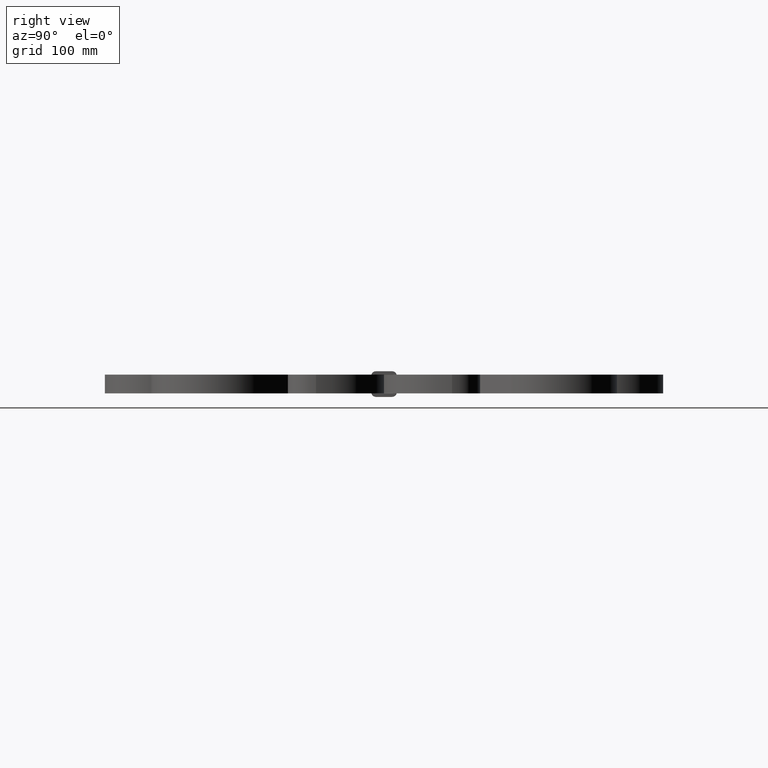
[diagram: clean part render]
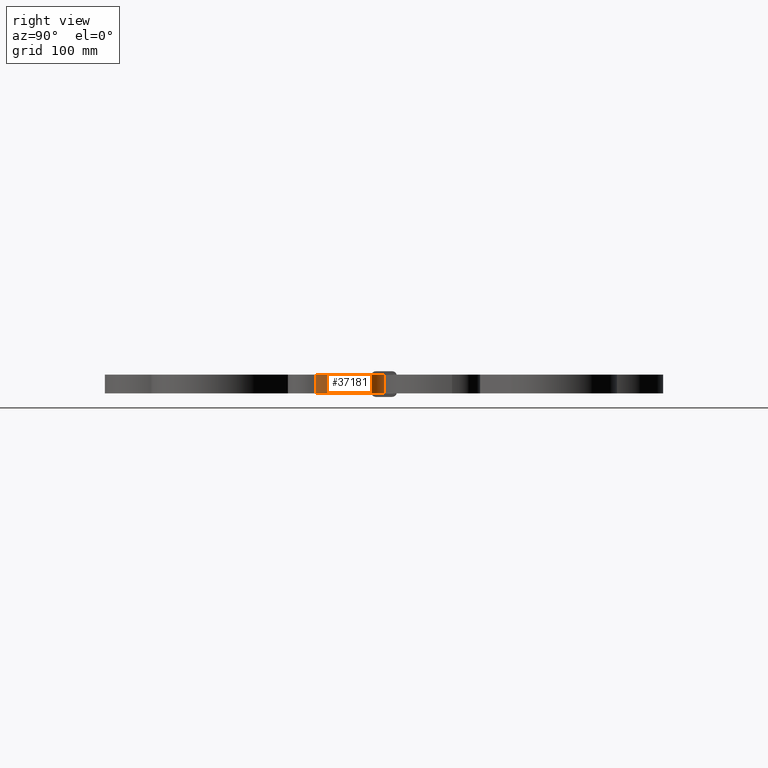
[diagram: same view with one face highlighted and labeled with its STEP entity id]
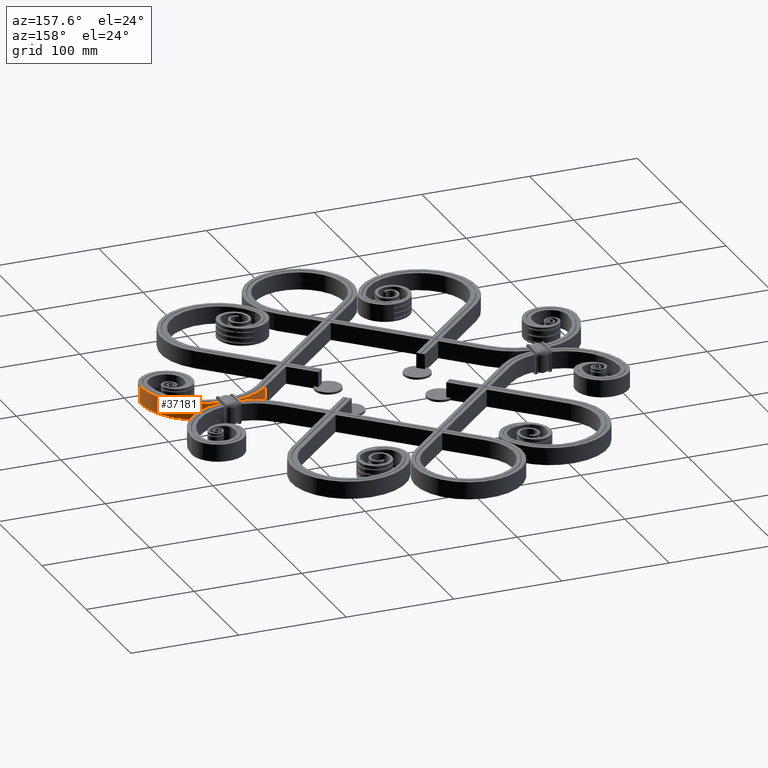
[diagram: same view with one face highlighted and labeled with its STEP entity id]
A machine part, right view. The second image highlights one B-rep face of the part: STEP entity #37181.
A second angle (auxiliary view) of the same face is appended — the face is thin or edge-on in the first view.
In plain terms, the highlighted cylindrical surface (partial cylindrical patch) has radius 58.3363 mm, axis along (0, 0, -1).
Its self-contained STEP definition (entity closure, byte-faithful):
#778 = DIRECTION ( 'NONE',  ( -4.757855935405398686E-16, -1.000000000000000000, 5.055221931368236227E-16 ) ) ;
#1561 = FACE_OUTER_BOUND ( 'NONE', #25409, .T. ) ;
#1835 = CARTESIAN_POINT ( 'NONE',  ( 102.9136905521103103, -17.08630944789002370, 8.000000000000000000 ) ) ;
#2673 = EDGE_CURVE ( 'NONE', #48851, #27803, #57656, .T. ) ;
#3061 = CARTESIAN_POINT ( 'NONE',  ( 144.1636905521100687, -58.33630944788991712, -8.000000000000000000 ) ) ;
#3103 = EDGE_CURVE ( 'NONE', #20527, #10687, #22519, .T. ) ;
#3242 = DIRECTION ( 'NONE',  ( -1.272096164169248062E-31, -4.956352788505173129E-16, -1.000000000000000000 ) ) ;
#3523 = DIRECTION ( 'NONE',  ( -1.000000000000000000, 2.378927967702698850E-16, 0.000000000000000000 ) ) ;
#3731 = AXIS2_PLACEMENT_3D ( 'NONE', #44856, #3242, #27024 ) ;
#3752 = ORIENTED_EDGE ( 'NONE', *, *, #9852, .T. ) ;
#4520 = ORIENTED_EDGE ( 'NONE', *, *, #3103, .F. ) ;
#5585 = DIRECTION ( 'NONE',  ( 3.814872741636481759E-30, -9.791242045329086144E-46, -1.000000000000000000 ) ) ;
#5991 = ORIENTED_EDGE ( 'NONE', *, *, #54733, .F. ) ;
#6671 = CIRCLE ( 'NONE', #47168, 58.33630944788995265 ) ;
#6854 = VERTEX_POINT ( 'NONE', #46424 ) ;
#8261 = AXIS2_PLACEMENT_3D ( 'NONE', #30892, #40107, #21248 ) ;
#8642 = ORIENTED_EDGE ( 'NONE', *, *, #46129, .F. ) ;
#9520 = EDGE_CURVE ( 'NONE', #18751, #46641, #53702, .T. ) ;
#9852 = EDGE_CURVE ( 'NONE', #6854, #35816, #44411, .T. ) ;
#10687 = VERTEX_POINT ( 'NONE', #22502 ) ;
#12250 = DIRECTION ( 'NONE',  ( -1.000000000000000000, 2.378927967702698850E-16, 0.000000000000000000 ) ) ;
#13015 = CIRCLE ( 'NONE', #48517, 58.33630944788993133 ) ;
#13120 = CARTESIAN_POINT ( 'NONE',  ( 151.4099999999999966, -0.4518037543505312725, -8.000000000000000000 ) ) ;
#13217 = CIRCLE ( 'NONE', #8261, 58.33630944788993844 ) ;
#16032 = AXIS2_PLACEMENT_3D ( 'NONE', #3061, #21452, #12250 ) ;
#17785 = CARTESIAN_POINT ( 'NONE',  ( 144.1636905521100687, -58.33630944788991712, 8.000000000000000000 ) ) ;
#18751 = VERTEX_POINT ( 'NONE', #33766 ) ;
#18949 = CARTESIAN_POINT ( 'NONE',  ( 144.1636905521100687, -58.33630944788991712, 8.000000000000028422 ) ) ;
#19025 = AXIS2_PLACEMENT_3D ( 'NONE', #35549, #44367, #3523 ) ;
#19775 = CARTESIAN_POINT ( 'NONE',  ( 144.1636905521100687, -58.33630944788991712, -8.000000000000003553 ) ) ;
#20527 = VERTEX_POINT ( 'NONE', #35962 ) ;
#21248 = DIRECTION ( 'NONE',  ( -1.000000000000000000, 2.378927967702698850E-16, 0.000000000000000000 ) ) ;
#21452 = DIRECTION ( 'NONE',  ( 0.000000000000000000, -0.000000000000000000, 1.000000000000000000 ) ) ;
#22131 = CARTESIAN_POINT ( 'NONE',  ( 202.4999999999999716, -58.33630944788968264, 8.000000000000000000 ) ) ;
#22392 = EDGE_CURVE ( 'NONE', #20527, #6854, #13015, .T. ) ;
#22502 = CARTESIAN_POINT ( 'NONE',  ( 102.9136905521103103, -17.08630944789002370, 8.000000000000000000 ) ) ;
#22519 = CIRCLE ( 'NONE', #49575, 58.33630944788993844 ) ;
#23367 = CIRCLE ( 'NONE', #48595, 58.33630944788995265 ) ;
#23594 = DIRECTION ( 'NONE',  ( 1.000000000000000000, -2.378927967702698357E-16, 0.000000000000000000 ) ) ;
#23964 = DIRECTION ( 'NONE',  ( -1.272096164169248062E-31, -4.956352788505173129E-16, -1.000000000000000000 ) ) ;
#25409 = EDGE_LOOP ( 'NONE', ( #39380, #53318, #5991, #47240, #41666, #38556, #4520, #39556, #3752, #8642 ) ) ;
#25608 = LINE ( 'NONE', #1835, #59250 ) ;
#25688 = CARTESIAN_POINT ( 'NONE',  ( 144.1636905521100687, -58.33630944788991712, -8.000000000000003553 ) ) ;
#27024 = DIRECTION ( 'NONE',  ( -4.757855935405398686E-16, -1.000000000000000000, 5.055221931368236227E-16 ) ) ;
#27281 = DIRECTION ( 'NONE',  ( 1.000000000000000000, -2.378927967702698357E-16, 0.000000000000000000 ) ) ;
#27803 = VERTEX_POINT ( 'NONE', #50667 ) ;
#28599 = EDGE_CURVE ( 'NONE', #10687, #46641, #25608, .T. ) ;
#28759 = CARTESIAN_POINT ( 'NONE',  ( 202.4999999999999716, -58.33630944788968264, 8.000000000000000000 ) ) ;
#29201 = VERTEX_POINT ( 'NONE', #47955 ) ;
#30332 = CARTESIAN_POINT ( 'NONE',  ( 144.1636905521100687, -58.33630944788991712, 8.000000000000000000 ) ) ;
#30337 = DIRECTION ( 'NONE',  ( 3.814872741636481759E-30, -9.791242045329086144E-46, -1.000000000000000000 ) ) ;
#30892 = CARTESIAN_POINT ( 'NONE',  ( 144.1636905521100687, -58.33630944788991712, 8.000000000000000000 ) ) ;
#31974 = AXIS2_PLACEMENT_3D ( 'NONE', #30332, #54696, #27281 ) ;
#33698 = DIRECTION ( 'NONE',  ( 0.000000000000000000, 0.000000000000000000, -1.000000000000000000 ) ) ;
#33766 = CARTESIAN_POINT ( 'NONE',  ( 136.9099999999999682, -0.4527282406580905860, -8.000000000000000000 ) ) ;
#34689 = VERTEX_POINT ( 'NONE', #13120 ) ;
#35549 = CARTESIAN_POINT ( 'NONE',  ( 144.1636905521100687, -58.33630944788991712, -8.000000000000000000 ) ) ;
#35816 = VERTEX_POINT ( 'NONE', #42559 ) ;
#35962 = CARTESIAN_POINT ( 'NONE',  ( 136.9099999999999682, -0.4527282406580905860, 7.999999999999998224 ) ) ;
#37181 = ADVANCED_FACE ( 'NONE', ( #1561 ), #52390, .T. ) ;
#38556 = ORIENTED_EDGE ( 'NONE', *, *, #28599, .F. ) ;
#39380 = ORIENTED_EDGE ( 'NONE', *, *, #2673, .T. ) ;
#39556 = ORIENTED_EDGE ( 'NONE', *, *, #22392, .T. ) ;
#40107 = DIRECTION ( 'NONE',  ( 0.000000000000000000, -0.000000000000000000, 1.000000000000000000 ) ) ;
#41666 = ORIENTED_EDGE ( 'NONE', *, *, #9520, .T. ) ;
#42559 = CARTESIAN_POINT ( 'NONE',  ( 151.4099999999999966, -0.4518037543505312725, 7.999999999999998224 ) ) ;
#44033 = CIRCLE ( 'NONE', #16032, 58.33630944788993844 ) ;
#44367 = DIRECTION ( 'NONE',  ( 0.000000000000000000, -0.000000000000000000, 1.000000000000000000 ) ) ;
#44411 = CIRCLE ( 'NONE', #3731, 58.33630944788993133 ) ;
#44856 = CARTESIAN_POINT ( 'NONE',  ( 144.1636905521100687, -58.33630944788991712, 8.000000000000028422 ) ) ;
#46129 = EDGE_CURVE ( 'NONE', #48851, #35816, #13217, .T. ) ;
#46424 = CARTESIAN_POINT ( 'NONE',  ( 144.1636905521100971, -1.618433205572883536E-14, 7.999999999999998224 ) ) ;
#46641 = VERTEX_POINT ( 'NONE', #54006 ) ;
#47168 = AXIS2_PLACEMENT_3D ( 'NONE', #25688, #30337, #48712 ) ;
#47240 = ORIENTED_EDGE ( 'NONE', *, *, #49714, .F. ) ;
#47955 = CARTESIAN_POINT ( 'NONE',  ( 144.1636905521100687, -1.618433205572882905E-14, -8.000000000000000000 ) ) ;
#48517 = AXIS2_PLACEMENT_3D ( 'NONE', #18949, #23964, #778 ) ;
#48595 = AXIS2_PLACEMENT_3D ( 'NONE', #19775, #5585, #23594 ) ;
#48712 = DIRECTION ( 'NONE',  ( 1.000000000000000000, -2.378927967702698357E-16, 0.000000000000000000 ) ) ;
#48851 = VERTEX_POINT ( 'NONE', #28759 ) ;
#49575 = AXIS2_PLACEMENT_3D ( 'NONE', #17785, #59018, #51454 ) ;
#49714 = EDGE_CURVE ( 'NONE', #18751, #29201, #23367, .T. ) ;
#50667 = CARTESIAN_POINT ( 'NONE',  ( 202.4999999999999716, -58.33630944788968264, -8.000000000000000000 ) ) ;
#51454 = DIRECTION ( 'NONE',  ( -1.000000000000000000, 2.378927967702698850E-16, 0.000000000000000000 ) ) ;
#52390 = CYLINDRICAL_SURFACE ( 'NONE', #31974, 58.33630944788995265 ) ;
#53249 = EDGE_CURVE ( 'NONE', #27803, #34689, #44033, .T. ) ;
#53318 = ORIENTED_EDGE ( 'NONE', *, *, #53249, .T. ) ;
#53702 = CIRCLE ( 'NONE', #19025, 58.33630944788993844 ) ;
#54006 = CARTESIAN_POINT ( 'NONE',  ( 102.9136905521103103, -17.08630944789002370, -8.000000000000000000 ) ) ;
#54352 = DIRECTION ( 'NONE',  ( 0.000000000000000000, 0.000000000000000000, -1.000000000000000000 ) ) ;
#54696 = DIRECTION ( 'NONE',  ( 0.000000000000000000, 0.000000000000000000, -1.000000000000000000 ) ) ;
#54733 = EDGE_CURVE ( 'NONE', #29201, #34689, #6671, .T. ) ;
#57656 = LINE ( 'NONE', #22131, #59093 ) ;
#59018 = DIRECTION ( 'NONE',  ( 0.000000000000000000, -0.000000000000000000, 1.000000000000000000 ) ) ;
#59093 = VECTOR ( 'NONE', #54352, 1000.000000000000000 ) ;
#59250 = VECTOR ( 'NONE', #33698, 1000.000000000000000 ) ;